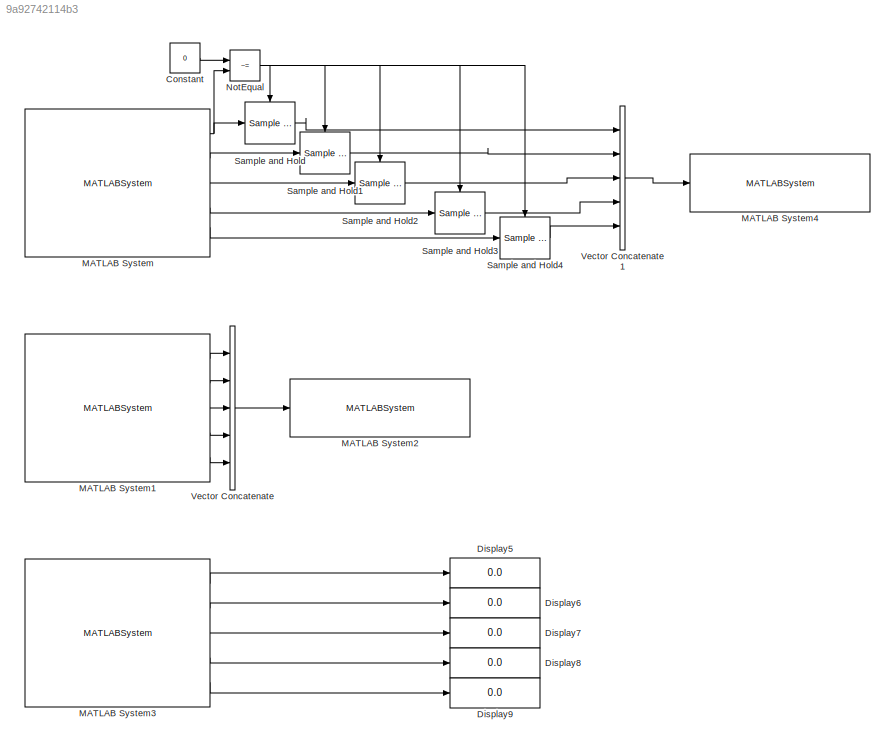
MODEL slx_9a92742114b3
KIND model
CONFIG AbsTol = auto
CONFIG EnableMultiTasking = off
CONFIG FixedStep = 0.02
CONFIG MaxStep = auto
CONFIG MinStep = auto
CONFIG RelTol = 1e-3
CONFIG SampleTimeConstraint = Unconstrained
CONFIG Solver = FixedStepAuto
CONFIG SolverName = FixedStepAuto
CONFIG StartTime = 0.0
CONFIG StopTime = inf
BLOCK [Constant] Constant
  Commented = on
  OutDataTypeStr = single
  Value = 0
BLOCK [Display] Display5
  Decimation = 2
  Ports = [1]
BLOCK [Display] Display6
  Decimation = 2
  Ports = [1]
BLOCK [Display] Display7
  Decimation = 2
  Ports = [1]
BLOCK [Display] Display8
  Decimation = 2
  Ports = [1]
BLOCK [Display] Display9
  Decimation = 2
  Ports = [1]
BLOCK [MATLABSystem] MATLAB System
  Commented = on
  MaskDisplay = disp('TinyGPS');\nport_label('output',1,'lat');\nport_label('output',2,'lon');\nport_label('output',3,'speed');\nport_label('output',4,'course');\nport_label('output',5,'alt');
  MaskType = TinyGPS
  Ports = [0, 5]
  SimulateUsing = Code generation
  System = TinyGPS
BLOCK [MATLABSystem] MATLAB System1
  Commented = on
  MaskDisplay = disp('TinyGPS');\nport_label('output',1,'lat');\nport_label('output',2,'lon');\nport_label('output',3,'speed');\nport_label('output',4,'course');\nport_label('output',5,'alt');
  MaskType = TinyGPS
  Ports = [0, 5]
  SimulateUsing = Code generation
  System = TinyGPS
BLOCK [MATLABSystem] MATLAB System2
  Commented = on
  MaskDisplay = disp('SDLogger');\nport_label('input',1,'data');
  MaskType = SDLogger
  Ports = [1]
  SimulateUsing = Code generation
  System = SDLogger
BLOCK [MATLABSystem] MATLAB System3
  MaskDisplay = disp('TinyGPS');\nport_label('output',1,'lat');\nport_label('output',2,'lon');\nport_label('output',3,'speed');\nport_label('output',4,'course');\nport_label('output',5,'alt');
  MaskType = TinyGPS
  Ports = [0, 5]
  SimulateUsing = Code generation
  System = TinyGPS
BLOCK [MATLABSystem] MATLAB System4
  Commented = on
  MaskDisplay = disp('SDLogger');\nport_label('input',1,'data');
  MaskType = SDLogger
  Ports = [1]
  SimulateUsing = Code generation
  System = SDLogger
BLOCK [RelationalOperator] NotEqual
  Commented = on
  InputSameDT = off
  Operator = ~=
  OutDataTypeStr = boolean
  Ports = [2, 1]
  RndMeth = Simplest
BLOCK [Reference] Sample and Hold  REF=dspsigops/Sample
and Hold
  Commented = on
  Ports = [1, 1, 0, 1]
  SourceBlock = dspsigops/Sample\nand Hold
  SourceProductBaseCode = DS
  SourceProductName = DSP System Toolbox
  SourceType = Sample and Hold
BLOCK [Reference] Sample and Hold1  REF=dspsigops/Sample
and Hold
  Commented = on
  Ports = [1, 1, 0, 1]
  SourceBlock = dspsigops/Sample\nand Hold
  SourceProductBaseCode = DS
  SourceProductName = DSP System Toolbox
  SourceType = Sample and Hold
BLOCK [Reference] Sample and Hold2  REF=dspsigops/Sample
and Hold
  Commented = on
  Ports = [1, 1, 0, 1]
  SourceBlock = dspsigops/Sample\nand Hold
  SourceProductBaseCode = DS
  SourceProductName = DSP System Toolbox
  SourceType = Sample and Hold
BLOCK [Reference] Sample and Hold3  REF=dspsigops/Sample
and Hold
  Commented = on
  Ports = [1, 1, 0, 1]
  SourceBlock = dspsigops/Sample\nand Hold
  SourceProductBaseCode = DS
  SourceProductName = DSP System Toolbox
  SourceType = Sample and Hold
BLOCK [Reference] Sample and Hold4  REF=dspsigops/Sample
and Hold
  Commented = on
  Ports = [1, 1, 0, 1]
  SourceBlock = dspsigops/Sample\nand Hold
  SourceProductBaseCode = DS
  SourceProductName = DSP System Toolbox
  SourceType = Sample and Hold
BLOCK [Concatenate] Vector Concatenate
  Commented = on
  NumInputs = 5
  Ports = [5, 1]
BLOCK [Concatenate] Vector Concatenate1
  Commented = on
  NumInputs = 5
  Ports = [5, 1]
LINE Constant:1 -> NotEqual:1
LINE MATLAB System1:1 -> Vector Concatenate:1
LINE MATLAB System1:2 -> Vector Concatenate:2
LINE MATLAB System1:3 -> Vector Concatenate:3
LINE MATLAB System1:4 -> Vector Concatenate:4
LINE MATLAB System1:5 -> Vector Concatenate:5
LINE MATLAB System3:1 -> Display5:1
LINE MATLAB System3:2 -> Display6:1
LINE MATLAB System3:3 -> Display7:1
LINE MATLAB System3:4 -> Display8:1
LINE MATLAB System3:5 -> Display9:1
NET MATLAB System:1 -> NotEqual:2, Sample and Hold:1
LINE MATLAB System:2 -> Sample and Hold1:1
LINE MATLAB System:3 -> Sample and Hold2:1
LINE MATLAB System:4 -> Sample and Hold3:1
LINE MATLAB System:5 -> Sample and Hold4:1
NET NotEqual:1 -> Sample and Hold1:trigger, Sample and Hold2:trigger, Sample and Hold3:trigger, Sample and Hold4:trigger, Sample and Hold:trigger
LINE Sample and Hold1:1 -> Vector Concatenate1:2
LINE Sample and Hold2:1 -> Vector Concatenate1:3
LINE Sample and Hold3:1 -> Vector Concatenate1:4
LINE Sample and Hold4:1 -> Vector Concatenate1:5
LINE Sample and Hold:1 -> Vector Concatenate1:1
LINE Vector Concatenate1:1 -> MATLAB System4:1
LINE Vector Concatenate:1 -> MATLAB System2:1
note: NET lines group one-source signal fan-out (src -> all destinations, sorted); 1:1 wires keep LINE
